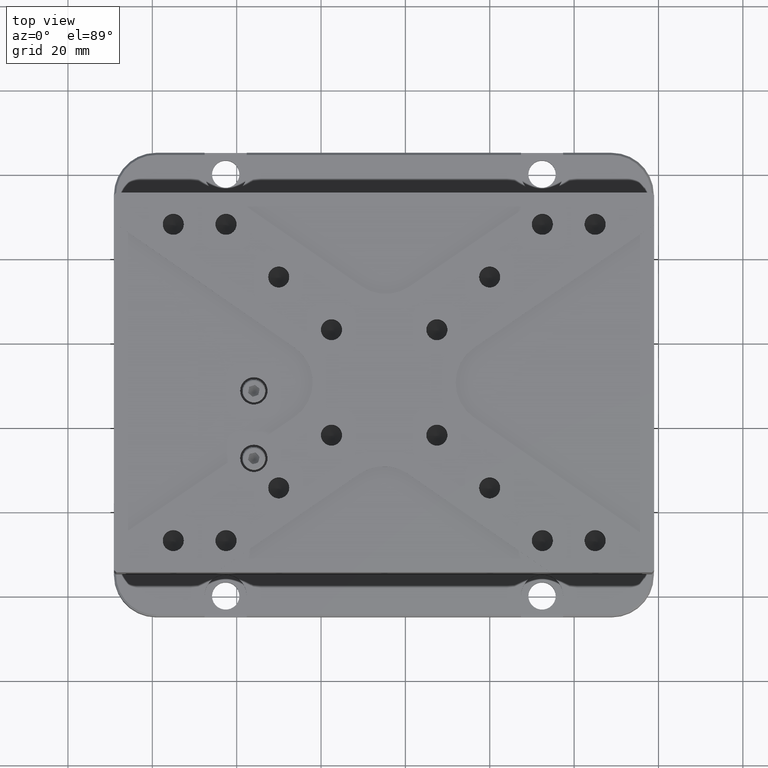
[diagram: clean part render]
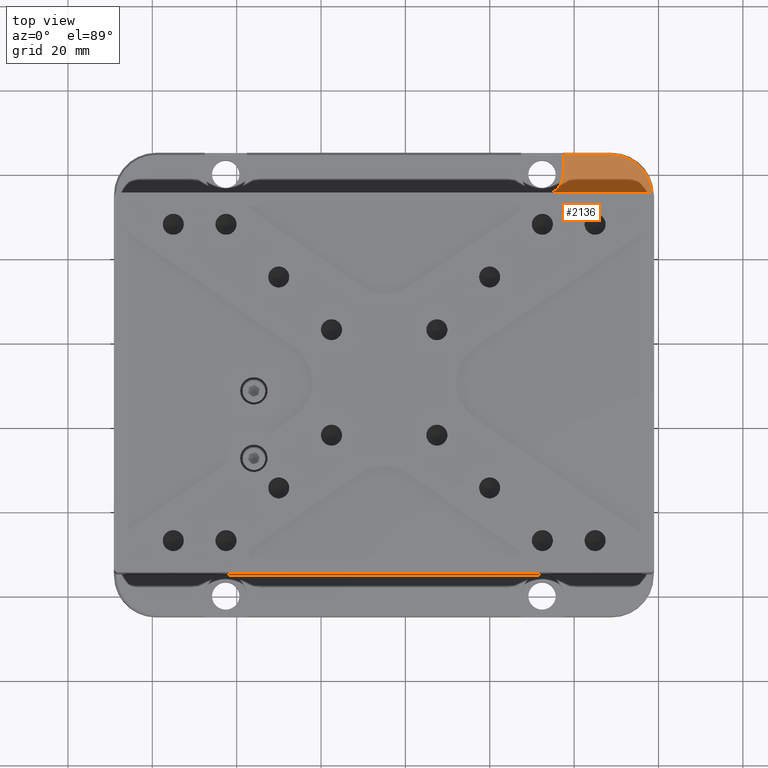
[diagram: same view with one face highlighted and labeled with its STEP entity id]
A machine part, top view. The second image highlights one B-rep face of the part: STEP entity #2136.
In plain terms, the highlighted planar face has unit normal (0, 0, 1).
Its self-contained STEP definition (entity closure, byte-faithful):
#2136 = ADVANCED_FACE ( 'NONE', ( #88042 ), #80369, .T. ) ;
#5594 = EDGE_CURVE ( 'NONE', #57138, #32361, #60954, .T. ) ;
#6405 = LINE ( 'NONE', #54741, #15133 ) ;
#8192 = CARTESIAN_POINT ( 'NONE',  ( 158.3923253742261466, 35.15063598315114035, 79.80000005662441254 ) ) ;
#8812 = AXIS2_PLACEMENT_3D ( 'NONE', #86087, #15216, #70325 ) ;
#9644 = CARTESIAN_POINT ( 'NONE',  ( 148.8923253742261181, 44.65063598315114035, 79.80000005662441254 ) ) ;
#15133 = VECTOR ( 'NONE', #20424, 1000.000000000000000 ) ;
#15216 = DIRECTION ( 'NONE',  ( 0.000000000000000000, 0.000000000000000000, -1.000000000000000000 ) ) ;
#18976 = DIRECTION ( 'NONE',  ( 1.000000000000000000, 0.000000000000000000, 0.000000000000000000 ) ) ;
#20424 = DIRECTION ( 'NONE',  ( 1.000000000000000000, -3.212450881438626041E-17, -3.212450881438536678E-17 ) ) ;
#25826 = CARTESIAN_POINT ( 'NONE',  ( 137.3923253742261466, 40.15063598315116167, 79.80000005662441254 ) ) ;
#27845 = ORIENTED_EDGE ( 'NONE', *, *, #5594, .T. ) ;
#28778 = ORIENTED_EDGE ( 'NONE', *, *, #78553, .F. ) ;
#30420 = CIRCLE ( 'NONE', #8812, 9.499999999999980460 ) ;
#32096 = CARTESIAN_POINT ( 'NONE',  ( 137.3923253742261466, 44.65063598315114035, 79.80000005662441254 ) ) ;
#32361 = VERTEX_POINT ( 'NONE', #25826 ) ;
#35757 = LINE ( 'NONE', #68749, #86398 ) ;
#38803 = VERTEX_POINT ( 'NONE', #9644 ) ;
#39756 = DIRECTION ( 'NONE',  ( 0.000000000000000000, 0.000000000000000000, -1.000000000000000000 ) ) ;
#40417 = AXIS2_PLACEMENT_3D ( 'NONE', #80864, #39756, #18976 ) ;
#44023 = VERTEX_POINT ( 'NONE', #8192 ) ;
#44379 = ORIENTED_EDGE ( 'NONE', *, *, #60374, .T. ) ;
#46039 = CARTESIAN_POINT ( 'NONE',  ( 40.89232537422616076, -54.84936401684885254, 79.80000005662441254 ) ) ;
#48954 = VECTOR ( 'NONE', #81734, 1000.000000000000000 ) ;
#51539 = ORIENTED_EDGE ( 'NONE', *, *, #61834, .T. ) ;
#54165 = CARTESIAN_POINT ( 'NONE',  ( 137.3923253742261466, 40.15063598315116167, 79.80000005662441254 ) ) ;
#54741 = CARTESIAN_POINT ( 'NONE',  ( 40.89232537422616076, 44.65063598315114035, 79.80000005662442675 ) ) ;
#57138 = VERTEX_POINT ( 'NONE', #32096 ) ;
#59843 = ORIENTED_EDGE ( 'NONE', *, *, #67394, .F. ) ;
#60374 = EDGE_CURVE ( 'NONE', #72152, #44023, #35757, .T. ) ;
#60954 = LINE ( 'NONE', #54165, #48954 ) ;
#61834 = EDGE_CURVE ( 'NONE', #32361, #72152, #76495, .T. ) ;
#63642 = EDGE_LOOP ( 'NONE', ( #27845, #51539, #44379, #28778, #59843 ) ) ;
#67394 = EDGE_CURVE ( 'NONE', #57138, #38803, #6405, .T. ) ;
#68151 = DIRECTION ( 'NONE',  ( 0.000000000000000000, 0.000000000000000000, 1.000000000000000000 ) ) ;
#68749 = CARTESIAN_POINT ( 'NONE',  ( 30.89232537422616076, 35.15063598315114035, 79.80000005662441254 ) ) ;
#70325 = DIRECTION ( 'NONE',  ( -1.000000000000000000, 0.000000000000000000, 0.000000000000000000 ) ) ;
#72152 = VERTEX_POINT ( 'NONE', #83905 ) ;
#76495 = CIRCLE ( 'NONE', #40417, 5.000000000000004441 ) ;
#76873 = DIRECTION ( 'NONE',  ( 1.000000000000000000, 0.000000000000000000, 0.000000000000000000 ) ) ;
#78553 = EDGE_CURVE ( 'NONE', #38803, #44023, #30420, .T. ) ;
#80369 = PLANE ( 'NONE',  #88348 ) ;
#80864 = CARTESIAN_POINT ( 'NONE',  ( 132.3923253742261466, 40.15063598315116167, 79.80000005662441254 ) ) ;
#81734 = DIRECTION ( 'NONE',  ( 1.387778780781442520E-15, -1.000000000000000000, -0.000000000000000000 ) ) ;
#83905 = CARTESIAN_POINT ( 'NONE',  ( 132.3923253742261181, 35.15063598315114035, 79.80000005662441254 ) ) ;
#86087 = CARTESIAN_POINT ( 'NONE',  ( 148.8923253742261466, 35.15063598315114035, 79.80000005662441254 ) ) ;
#86398 = VECTOR ( 'NONE', #76873, 1000.000000000000000 ) ;
#87591 = DIRECTION ( 'NONE',  ( 1.000000000000000000, 0.000000000000000000, -0.000000000000000000 ) ) ;
#88042 = FACE_OUTER_BOUND ( 'NONE', #63642, .T. ) ;
#88348 = AXIS2_PLACEMENT_3D ( 'NONE', #46039, #68151, #87591 ) ;